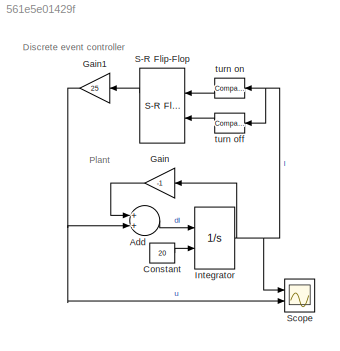
MODEL slx_561e5e01429f
KIND model
CONFIG AbsTol = auto
CONFIG EnableMultiTasking = off
CONFIG FixedStep = auto
CONFIG MaxStep = auto
CONFIG MinStep = auto
CONFIG RelTol = 1e-3
CONFIG SampleTimeConstraint = Unconstrained
CONFIG Solver = VariableStepAuto
CONFIG SolverName = VariableStepAuto
CONFIG StartTime = 0.0
CONFIG StopTime = 5
BLOCK [Sum] Add
  InputSameDT = off
  OutDataTypeStr = Inherit: Inherit via internal rule
  Ports = [2, 1]
  SaturateOnIntegerOverflow = off
BLOCK [Constant] Constant
  Value = 20
BLOCK [Gain] Gain
  Gain = -1
  OutDataTypeStr = Inherit: Inherit via internal rule
  ParamDataTypeStr = Inherit: Inherit via internal rule
  SaturateOnIntegerOverflow = off
BLOCK [Gain] Gain1
  Gain = 25
  OutDataTypeStr = Inherit: Inherit via internal rule
  ParamDataTypeStr = Inherit: Inherit via internal rule
  SaturateOnIntegerOverflow = off
BLOCK [Integrator] Integrator
  InitialConditionSource = external
  Ports = [2, 1]
  ZeroCross = off
BLOCK [Reference] S-R Flip-Flop  REF=simulink_extras/Flip Flops/S-R
Flip-Flop
  Ports = [2, 2]
  SourceBlock = simulink_extras/Flip Flops/S-R\nFlip-Flop
  SourceProductBaseCode = SL
  SourceProductName = Simulink
  SourceType = SRFlipFlop
BLOCK [Scope] Scope
  Floating = off
  NumInputPorts = 2
  Ports = [2]
  ScopeSpecificationString = Simulink.scopes.TimeScopeBlockCfg('CurrentConfiguration', extmgr.ConfigurationSet(extmgr.Configuration('Core','General UI',true,'FigureColor',[1 1 1]),extmgr.Configuration('Core','Source UI',true),extmgr.Configuration('Sources','WiredSimulink',true),extmgr.Configuration('Visuals','Time Domain',true,'SerializedDisplays',{struct('MinYLimReal','8.75','MaxYLimReal','21.25','YLabelReal','','MinYLimMag'...<+2405ch>
BLOCK [Reference] turn off  REF=simulink/Logic and Bit
Operations/Compare
To Constant
  Ports = [1, 1]
  SourceBlock = simulink/Logic and Bit\nOperations/Compare\nTo Constant
  SourceProductBaseCode = SL
  SourceProductName = Simulink
  SourceType = Compare To Constant
BLOCK [Reference] turn on  REF=simulink/Logic and Bit
Operations/Compare
To Constant
  Ports = [1, 1]
  SourceBlock = simulink/Logic and Bit\nOperations/Compare\nTo Constant
  SourceProductBaseCode = SL
  SourceProductName = Simulink
  SourceType = Compare To Constant
ANNOTATION (root): Discrete event controller
ANNOTATION (root): Plant
LINE Add:1 -> Integrator:1
LINE Constant:1 -> Integrator:2
NET Gain1:1 -> Add:2, Scope:2
LINE Gain:1 -> Add:1
NET Integrator:1 -> Gain:1, Scope:1, turn off:1, turn on:1
LINE S-R Flip-Flop:1 -> Gain1:1
LINE turn off:1 -> S-R Flip-Flop:2
LINE turn on:1 -> S-R Flip-Flop:1
note: NET lines group one-source signal fan-out (src -> all destinations, sorted); 1:1 wires keep LINE
